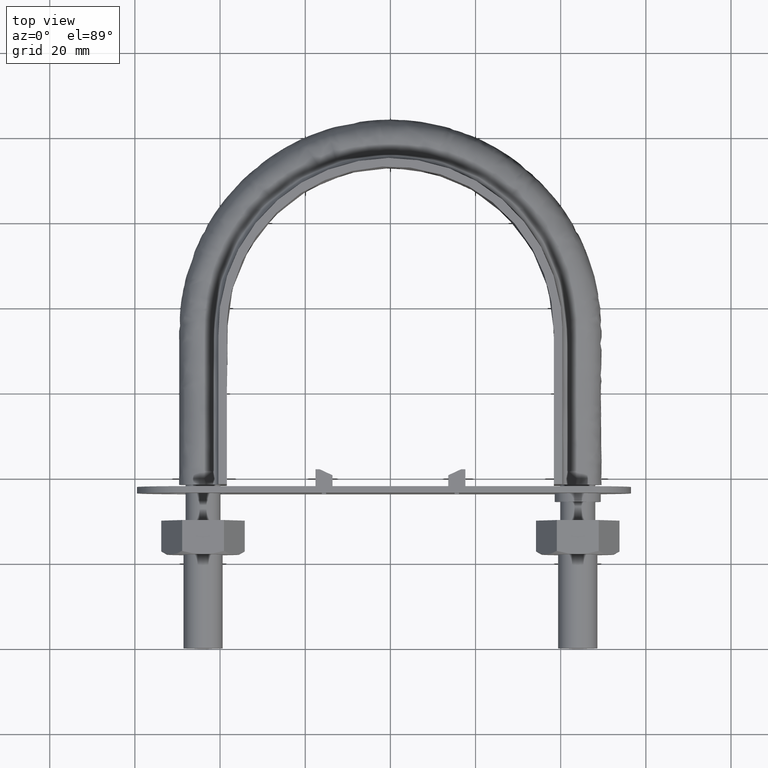
[diagram: clean part render]
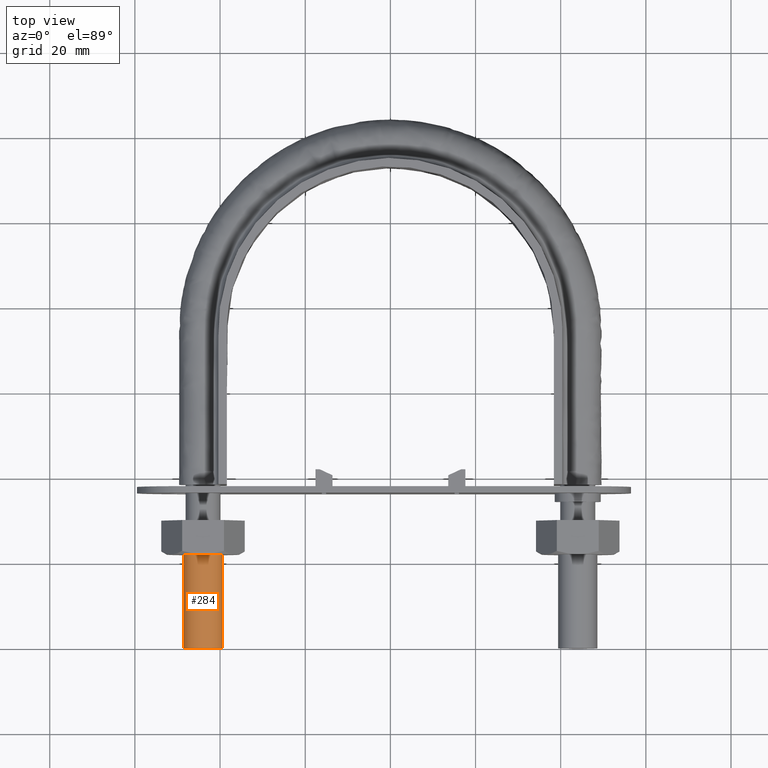
[diagram: same view with one face highlighted and labeled with its STEP entity id]
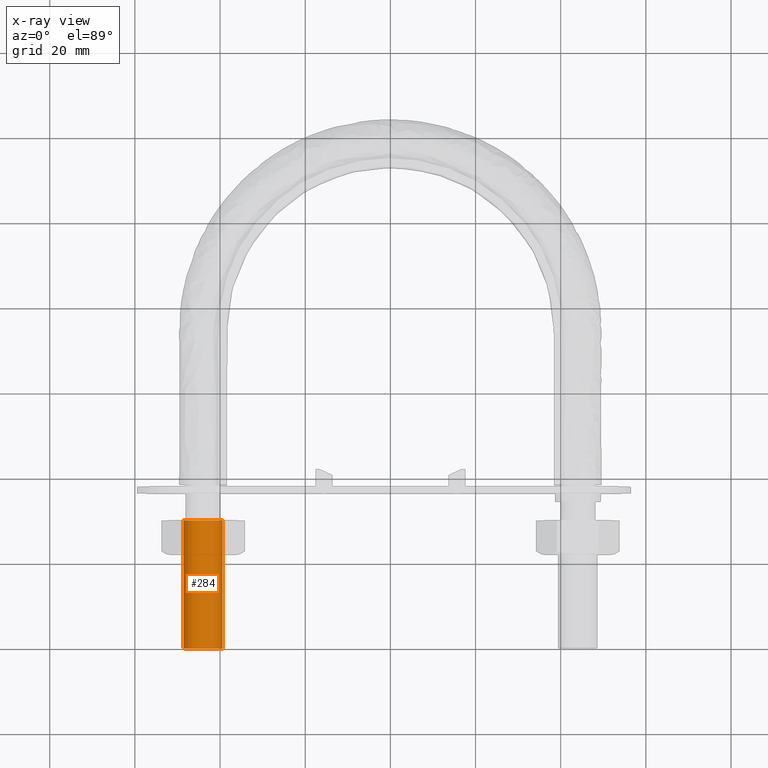
[diagram: x-ray of the same camera — body ghosted, the highlighted face saturated]
A machine part, top view. The second image highlights one B-rep face of the part: STEP entity #284.
The next image is the same camera in x-ray: the body ghosted, the highlighted face saturated — about 0% of this face is hidden behind the body in this view.
In plain terms, the highlighted cylindrical surface (bore or boss wall) has radius 4.6 mm, axis along (0, 1, -0).
Its self-contained STEP definition (entity closure, byte-faithful):
#284 = ADVANCED_FACE( '', ( #422, #423 ), #424, .T. );
#422 = FACE_OUTER_BOUND( '', #1504, .T. );
#423 = FACE_OUTER_BOUND( '', #1505, .T. );
#424 = CYLINDRICAL_SURFACE( '', #1506, 4.60000000000000 );
#1504 = EDGE_LOOP( '', ( #1848 ) );
#1505 = EDGE_LOOP( '', ( #1849 ) );
#1506 = AXIS2_PLACEMENT_3D( '', #1850, #1851, #1852 );
#1848 = ORIENTED_EDGE( '', *, *, #2591, .F. );
#1849 = ORIENTED_EDGE( '', *, *, #2589, .T. );
#1850 = CARTESIAN_POINT( '', ( -44.0000000000000, 30.0000000000000, -1.80629437188801E-015 ) );
#1851 = DIRECTION( '', ( 1.22460635382238E-016, 1.00000000000000, -6.12303176911189E-017 ) );
#1852 = DIRECTION( '', ( 1.00000000000000, -1.22460635382238E-016, 7.49830360911069E-033 ) );
#2589 = EDGE_CURVE( '', #2855, #2855, #2856, .T. );
#2591 = EDGE_CURVE( '', #2859, #2859, #2860, .T. );
#2855 = VERTEX_POINT( '', #3508 );
#2856 = CIRCLE( '', #3509, 4.60000000000000 );
#2859 = VERTEX_POINT( '', #3512 );
#2860 = CIRCLE( '', #3513, 4.60000000000000 );
#3508 = CARTESIAN_POINT( '', ( -48.6000000000000, 5.95158687957675E-015, 3.06151588455591E-017 ) );
#3509 = AXIS2_PLACEMENT_3D( '', #4134, #4135, #4136 );
#3512 = CARTESIAN_POINT( '', ( -48.6000000000000, 30.0000000000000, -1.80629437188801E-015 ) );
#3513 = AXIS2_PLACEMENT_3D( '', #4140, #4141, #4142 );
#4134 = CARTESIAN_POINT( '', ( -44.0000000000000, 5.38826795681846E-015, 3.06151588455591E-017 ) );
#4135 = DIRECTION( '', ( 1.22460635382238E-016, 1.00000000000000, -6.12303176911189E-017 ) );
#4136 = DIRECTION( '', ( -1.00000000000000, 1.22460635382238E-016, -7.49830360911069E-033 ) );
#4140 = CARTESIAN_POINT( '', ( -44.0000000000000, 30.0000000000000, -1.80629437188801E-015 ) );
#4141 = DIRECTION( '', ( 1.22460635382238E-016, 1.00000000000000, -6.12303176911189E-017 ) );
#4142 = DIRECTION( '', ( -1.00000000000000, 1.22460635382238E-016, -7.49830360911069E-033 ) );